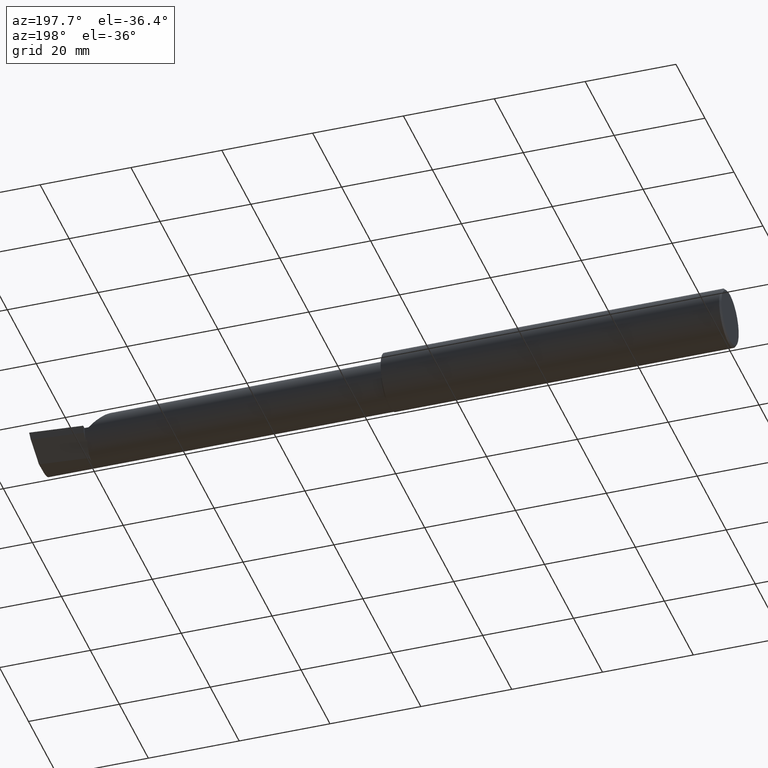
[diagram: clean part render]
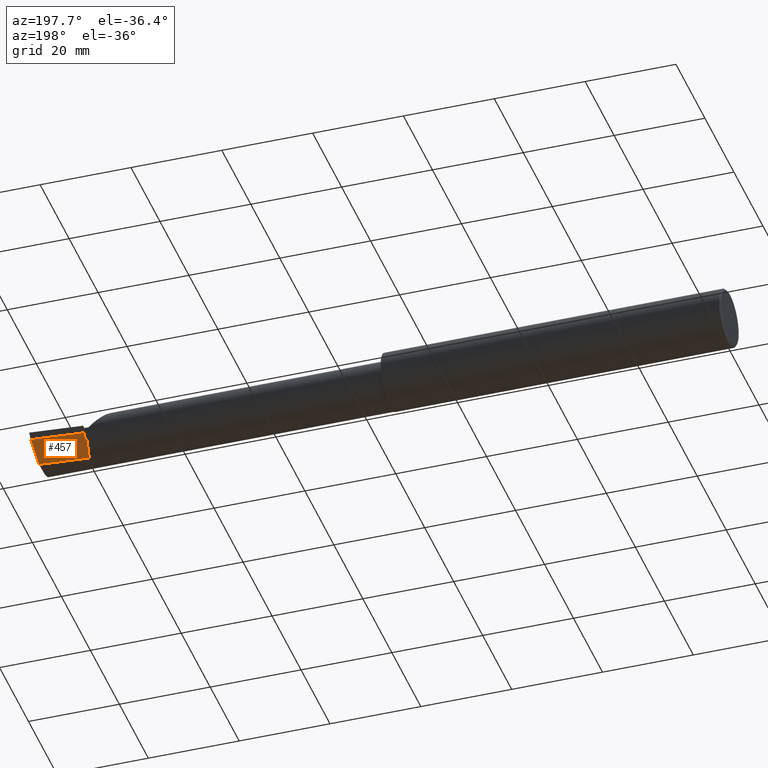
[diagram: same view with one face highlighted and labeled with its STEP entity id]
A machine part, auxiliary view. The second image highlights one B-rep face of the part: STEP entity #457.
In plain terms, the highlighted planar face has unit normal (0.0689, -0.716, 0.6947).
Its self-contained STEP definition (entity closure, byte-faithful):
#4 = LINE ( 'NONE', #632, #526 ) ;
#16 = CARTESIAN_POINT ( 'NONE',  ( 5.544999999999999929, 0.2148312740513258212, -0.01988118725737623299 ) ) ;
#22 =( BOUNDED_CURVE ( )  B_SPLINE_CURVE ( 3, ( #723, #344, #398, #389 ),
 .UNSPECIFIED., .F., .F. ) 
 B_SPLINE_CURVE_WITH_KNOTS ( ( 4, 4 ),
 ( 2.868174658477152583, 2.883234730632701304 ),
 .UNSPECIFIED. ) 
 CURVE ( )  GEOMETRIC_REPRESENTATION_ITEM ( )  RATIONAL_B_SPLINE_CURVE ( ( 1.000000000000000000, 0.9999810996081960335, 0.9999810996081960335, 1.000000000000000000 ) ) 
 REPRESENTATION_ITEM ( '' )  );
#24 = ORIENTED_EDGE ( 'NONE', *, *, #37, .T. ) ;
#26 = VECTOR ( 'NONE', #81, 39.37007874015748854 ) ;
#36 = LINE ( 'NONE', #309, #334 ) ;
#37 = EDGE_CURVE ( 'NONE', #150, #759, #22, .T. ) ;
#54 = ORIENTED_EDGE ( 'NONE', *, *, #288, .F. ) ;
#75 = FACE_OUTER_BOUND ( 'NONE', #85, .T. ) ;
#78 = DIRECTION ( 'NONE',  ( 0.06658005426110771841, -0.6914603011188220627, -0.7193398003386546335 ) ) ;
#81 = DIRECTION ( 'NONE',  ( 0.0000000000000000000, 0.6963153109074925462, 0.7177360153954946975 ) ) ;
#85 = EDGE_LOOP ( 'NONE', ( #313, #620, #429, #264, #484, #54, #24, #580 ) ) ;
#88 =( BOUNDED_CURVE ( )  B_SPLINE_CURVE ( 3, ( #641, #443, #205, #433 ),
 .UNSPECIFIED., .F., .F. ) 
 B_SPLINE_CURVE_WITH_KNOTS ( ( 4, 4 ),
 ( 3.399950576546887593, 3.405787439796297722 ),
 .UNSPECIFIED. ) 
 CURVE ( )  GEOMETRIC_REPRESENTATION_ITEM ( )  RATIONAL_B_SPLINE_CURVE ( ( 1.000000000000000000, 0.9999971609209656886, 0.9999971609209656886, 1.000000000000000000 ) ) 
 REPRESENTATION_ITEM ( '' )  );
#101 = VERTEX_POINT ( 'NONE', #642 ) ;
#119 = CARTESIAN_POINT ( 'NONE',  ( 5.532795049205048166, 0.1343794326159110653, -0.1015966078791004507 ) ) ;
#150 = VERTEX_POINT ( 'NONE', #119 ) ;
#184 = EDGE_CURVE ( 'NONE', #101, #310, #4, .T. ) ;
#198 = DIRECTION ( 'NONE',  ( -0.1053106618241714670, -0.6976485211320174740, -0.7086580314005225256 ) ) ;
#205 = CARTESIAN_POINT ( 'NONE',  ( 5.541916792879874265, 0.05627666367902717931, -0.1830073912696828786 ) ) ;
#224 = LINE ( 'NONE', #597, #321 ) ;
#231 = DIRECTION ( 'NONE',  ( 0.9953961983671800740, 0.09584575252021025615, -1.636475167022361930E-17 ) ) ;
#259 = DIRECTION ( 'NONE',  ( 0.0000000000000000000, 0.6963153109074925462, 0.7177360153954946975 ) ) ;
#264 = ORIENTED_EDGE ( 'NONE', *, *, #569, .T. ) ;
#273 = EDGE_CURVE ( 'NONE', #759, #293, #511, .T. ) ;
#274 = VERTEX_POINT ( 'NONE', #708 ) ;
#279 = EDGE_CURVE ( 'NONE', #423, #310, #224, .T. ) ;
#288 = EDGE_CURVE ( 'NONE', #150, #274, #598, .T. ) ;
#293 = VERTEX_POINT ( 'NONE', #668 ) ;
#307 = CARTESIAN_POINT ( 'NONE',  ( 5.528944985009567326, 0.1743638780700113855, -0.06000000000000002554 ) ) ;
#309 = CARTESIAN_POINT ( 'NONE',  ( 5.544999999999999929, 0.2148312740513258212, -0.01988118725737623299 ) ) ;
#310 = VERTEX_POINT ( 'NONE', #715 ) ;
#313 = ORIENTED_EDGE ( 'NONE', *, *, #446, .T. ) ;
#321 = VECTOR ( 'NONE', #198, 39.37007874015748143 ) ;
#334 = VECTOR ( 'NONE', #259, 39.37007874015748854 ) ;
#344 = CARTESIAN_POINT ( 'NONE',  ( 5.536975816846314125, 0.1338694103809240643, -0.1025372660271250541 ) ) ;
#351 = PLANE ( 'NONE',  #562 ) ;
#358 = CARTESIAN_POINT ( 'NONE',  ( 5.528944985009567326, 0.1743638780700113855, -0.06000000000000002554 ) ) ;
#384 = CARTESIAN_POINT ( 'NONE',  ( 5.992127980275561150, 0.2189633278254524695, -0.06000000000000002554 ) ) ;
#389 = CARTESIAN_POINT ( 'NONE',  ( 5.544999999999999929, 0.1328281892403430642, -0.1044069278527784972 ) ) ;
#396 = LINE ( 'NONE', #664, #672 ) ;
#398 = CARTESIAN_POINT ( 'NONE',  ( 5.541044210672206205, 0.1333523194825144698, -0.1034740570574020080 ) ) ;
#423 = VERTEX_POINT ( 'NONE', #384 ) ;
#429 = ORIENTED_EDGE ( 'NONE', *, *, #184, .F. ) ;
#433 = CARTESIAN_POINT ( 'NONE',  ( 5.540349815208493567, 0.05592018782259736837, -0.1832193089843159595 ) ) ;
#440 = EDGE_CURVE ( 'NONE', #563, #274, #88, .T. ) ;
#442 = VECTOR ( 'NONE', #78, 39.37007874015748854 ) ;
#443 = CARTESIAN_POINT ( 'NONE',  ( 5.543466858877803993, 0.05663251955087997974, -0.1827944341085907531 ) ) ;
#446 = EDGE_CURVE ( 'NONE', #293, #423, #396, .T. ) ;
#457 = ADVANCED_FACE ( 'NONE', ( #75 ), #351, .F. ) ;
#484 = ORIENTED_EDGE ( 'NONE', *, *, #440, .T. ) ;
#511 = LINE ( 'NONE', #16, #26 ) ;
#526 = VECTOR ( 'NONE', #231, 39.37007874015748854 ) ;
#562 = AXIS2_PLACEMENT_3D ( 'NONE', #358, #700, #670 ) ;
#563 = VERTEX_POINT ( 'NONE', #656 ) ;
#569 = EDGE_CURVE ( 'NONE', #101, #563, #36, .T. ) ;
#580 = ORIENTED_EDGE ( 'NONE', *, *, #273, .T. ) ;
#597 = CARTESIAN_POINT ( 'NONE',  ( 5.983714411583734183, 0.1632262006094475082, -0.1166167083458063969 ) ) ;
#598 = LINE ( 'NONE', #307, #442 ) ;
#620 = ORIENTED_EDGE ( 'NONE', *, *, #279, .T. ) ;
#625 = CARTESIAN_POINT ( 'NONE',  ( 5.544999999999999929, 0.1328281892403430642, -0.1044069278527784972 ) ) ;
#632 = CARTESIAN_POINT ( 'NONE',  ( 5.988156289907357710, 0.07000163221415016401, -0.2131499999999999506 ) ) ;
#641 = CARTESIAN_POINT ( 'NONE',  ( 5.544999999999999929, 0.05698775240724696101, -0.1825804393148462157 ) ) ;
#642 = CARTESIAN_POINT ( 'NONE',  ( 5.544999999999999929, 0.02733053485622438314, -0.2131499999999999506 ) ) ;
#656 = CARTESIAN_POINT ( 'NONE',  ( 5.544999999999999929, 0.05698775240724696101, -0.1825804393148462157 ) ) ;
#664 = CARTESIAN_POINT ( 'NONE',  ( 5.528944985009567326, 0.1743638780700113855, -0.06000000000000002554 ) ) ;
#668 = CARTESIAN_POINT ( 'NONE',  ( 5.544999999999999929, 0.1759098001822371471, -0.06000000000000002554 ) ) ;
#670 = DIRECTION ( 'NONE',  ( 0.0000000000000000000, -0.6963153109074925462, -0.7177360153954946975 ) ) ;
#672 = VECTOR ( 'NONE', #705, 39.37007874015748854 ) ;
#700 = DIRECTION ( 'NONE',  ( 0.06894566448119619773, -0.7160281025913034503, 0.6946583704589934793 ) ) ;
#705 = DIRECTION ( 'NONE',  ( 0.9953961983671800740, 0.09584575252021028391, -0.0000000000000000000 ) ) ;
#708 = CARTESIAN_POINT ( 'NONE',  ( 5.540349815208493567, 0.05592018782259736837, -0.1832193089843159595 ) ) ;
#715 = CARTESIAN_POINT ( 'NONE',  ( 5.969369008890593520, 0.06819262280682650279, -0.2131499999999999229 ) ) ;
#723 = CARTESIAN_POINT ( 'NONE',  ( 5.532795049205048166, 0.1343794326159110653, -0.1015966078791004507 ) ) ;
#759 = VERTEX_POINT ( 'NONE', #625 ) ;